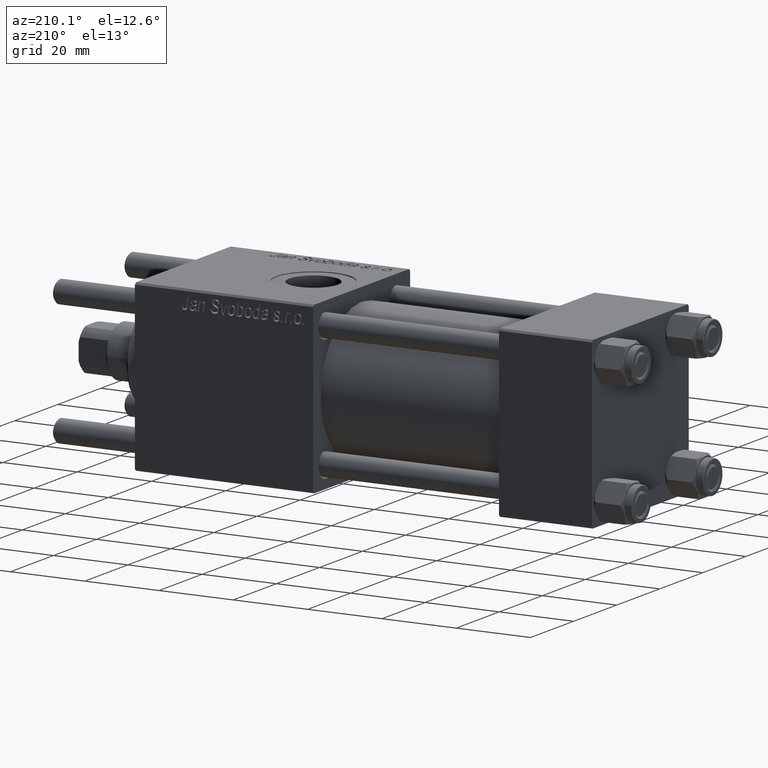
[diagram: clean part render]
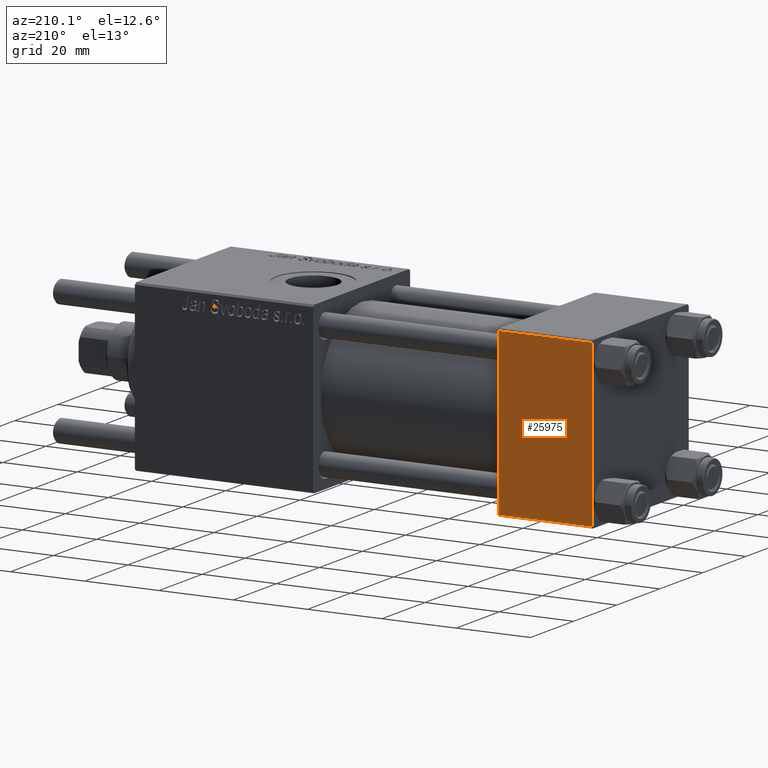
[diagram: same view with one face highlighted and labeled with its STEP entity id]
A machine part, auxiliary view. The second image highlights one B-rep face of the part: STEP entity #25975.
In plain terms, the highlighted planar face has unit normal (0, 1, 0).
Its self-contained STEP definition (entity closure, byte-faithful):
#1063 = EDGE_CURVE ( 'NONE', #23895, #52288, #7299, .T. ) ;
#1540 = DIRECTION ( 'NONE',  ( -0.000000000000000000, 1.000000000000000000, 0.000000000000000000 ) ) ;
#2147 = DIRECTION ( 'NONE',  ( 0.000000000000000000, 0.000000000000000000, -1.000000000000000000 ) ) ;
#5747 = CARTESIAN_POINT ( 'NONE',  ( 0.000000000000000000, 22.50000000000000000, 21.99999999999999645 ) ) ;
#6056 = DIRECTION ( 'NONE',  ( 1.000000000000000000, 0.000000000000000000, 0.000000000000000000 ) ) ;
#7299 = LINE ( 'NONE', #29747, #13335 ) ;
#8498 = ORIENTED_EDGE ( 'NONE', *, *, #14799, .T. ) ;
#10805 = CARTESIAN_POINT ( 'NONE',  ( 25.00000000000000000, 22.50000000000000000, 22.50000000000000355 ) ) ;
#13335 = VECTOR ( 'NONE', #41856, 1000.000000000000000 ) ;
#13379 = EDGE_CURVE ( 'NONE', #49086, #23895, #54557, .T. ) ;
#14799 = EDGE_CURVE ( 'NONE', #21013, #49086, #49827, .T. ) ;
#15096 = CARTESIAN_POINT ( 'NONE',  ( 25.00000000000000000, 22.50000000000000000, 22.50000000000000355 ) ) ;
#18842 = PLANE ( 'NONE',  #30324 ) ;
#21013 = VERTEX_POINT ( 'NONE', #5747 ) ;
#23895 = VERTEX_POINT ( 'NONE', #33489 ) ;
#25437 = VECTOR ( 'NONE', #47105, 1000.000000000000000 ) ;
#25975 = ADVANCED_FACE ( 'NONE', ( #54797 ), #18842, .T. ) ;
#28704 = CARTESIAN_POINT ( 'NONE',  ( 0.000000000000000000, 22.50000000000000000, 22.50000000000000355 ) ) ;
#29747 = CARTESIAN_POINT ( 'NONE',  ( 25.00000000000000000, 22.50000000000000000, -21.99999999999998224 ) ) ;
#30324 = AXIS2_PLACEMENT_3D ( 'NONE', #15096, #1540, #41288 ) ;
#33489 = CARTESIAN_POINT ( 'NONE',  ( 25.00000000000000000, 22.50000000000000000, -21.99999999999996803 ) ) ;
#36589 = VECTOR ( 'NONE', #6056, 1000.000000000000000 ) ;
#37075 = EDGE_CURVE ( 'NONE', #21013, #52288, #47374, .T. ) ;
#40115 = ORIENTED_EDGE ( 'NONE', *, *, #1063, .T. ) ;
#41288 = DIRECTION ( 'NONE',  ( 0.000000000000000000, -0.000000000000000000, 1.000000000000000000 ) ) ;
#41856 = DIRECTION ( 'NONE',  ( -1.000000000000000000, 0.000000000000000000, 0.000000000000000000 ) ) ;
#43117 = EDGE_LOOP ( 'NONE', ( #53198, #40115, #50429, #8498 ) ) ;
#43562 = CARTESIAN_POINT ( 'NONE',  ( 0.000000000000000000, 22.50000000000000000, -21.99999999999996803 ) ) ;
#45749 = VECTOR ( 'NONE', #2147, 1000.000000000000000 ) ;
#47105 = DIRECTION ( 'NONE',  ( 0.000000000000000000, 0.000000000000000000, -1.000000000000000000 ) ) ;
#47374 = LINE ( 'NONE', #28704, #25437 ) ;
#48924 = CARTESIAN_POINT ( 'NONE',  ( 25.00000000000000000, 22.50000000000000000, 21.99999999999999645 ) ) ;
#49086 = VERTEX_POINT ( 'NONE', #48924 ) ;
#49827 = LINE ( 'NONE', #53078, #36589 ) ;
#50429 = ORIENTED_EDGE ( 'NONE', *, *, #37075, .F. ) ;
#52288 = VERTEX_POINT ( 'NONE', #43562 ) ;
#53078 = CARTESIAN_POINT ( 'NONE',  ( 25.00000000000000000, 22.50000000000000000, 21.99999999999999645 ) ) ;
#53198 = ORIENTED_EDGE ( 'NONE', *, *, #13379, .T. ) ;
#54557 = LINE ( 'NONE', #10805, #45749 ) ;
#54797 = FACE_OUTER_BOUND ( 'NONE', #43117, .T. ) ;